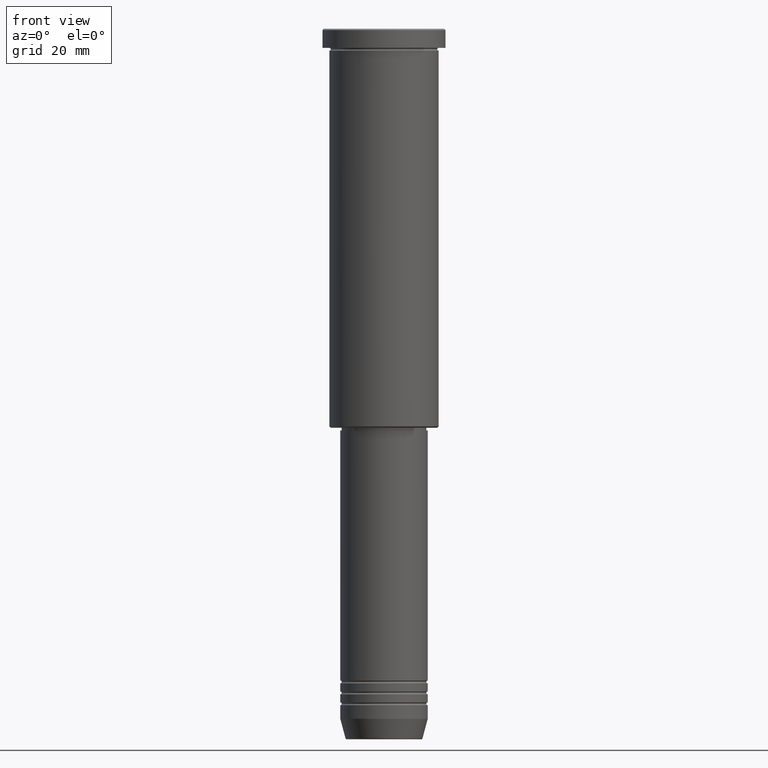
[diagram: clean part render]
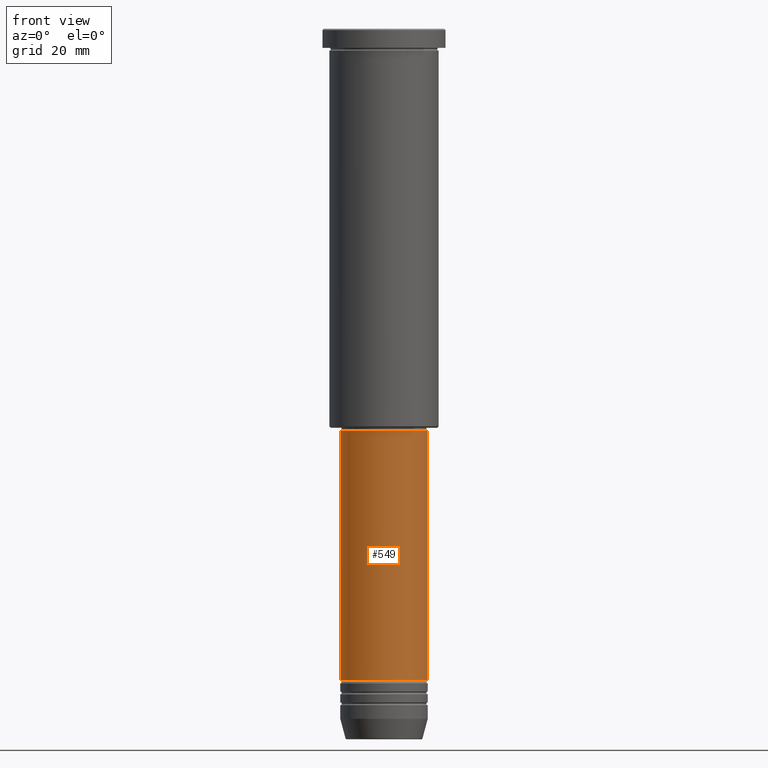
[diagram: same view with one face highlighted and labeled with its STEP entity id]
A machine part, front view. The second image highlights one B-rep face of the part: STEP entity #549.
In plain terms, the highlighted cylindrical surface (partial cylindrical patch) has radius 16 mm, axis along (-0, -0, 1).
Its self-contained STEP definition (entity closure, byte-faithful):
#3 = CARTESIAN_POINT ( 'NONE',  ( 16.00000000000000000, 0.000000000000000000, -238.5000000000000000 ) ) ;
#24 = DIRECTION ( 'NONE',  ( -0.000000000000000000, -0.000000000000000000, 1.000000000000000000 ) ) ;
#31 = ORIENTED_EDGE ( 'NONE', *, *, #1047, .T. ) ;
#40 = CARTESIAN_POINT ( 'NONE',  ( 0.000000000000000000, 0.000000000000000000, 0.000000000000000000 ) ) ;
#50 = VERTEX_POINT ( 'NONE', #283 ) ;
#55 = VECTOR ( 'NONE', #989, 1000.000000000000000 ) ;
#57 = ORIENTED_EDGE ( 'NONE', *, *, #893, .F. ) ;
#79 = EDGE_CURVE ( 'NONE', #968, #609, #640, .T. ) ;
#121 = DIRECTION ( 'NONE',  ( 1.000000000000000000, 0.000000000000000000, 0.000000000000000000 ) ) ;
#129 = DIRECTION ( 'NONE',  ( 1.000000000000000000, 0.000000000000000000, 0.000000000000000000 ) ) ;
#182 = EDGE_CURVE ( 'NONE', #872, #609, #236, .T. ) ;
#193 = CARTESIAN_POINT ( 'NONE',  ( 0.000000000000000000, 0.000000000000000000, -147.0000000000000000 ) ) ;
#220 = CARTESIAN_POINT ( 'NONE',  ( 0.000000000000000000, 0.000000000000000000, -238.5000000000000000 ) ) ;
#236 = LINE ( 'NONE', #403, #831 ) ;
#237 = EDGE_LOOP ( 'NONE', ( #57, #31, #485, #526 ) ) ;
#258 = CARTESIAN_POINT ( 'NONE',  ( -16.00000000000000000, 1.959434878635765131E-15, -147.0000000000000000 ) ) ;
#283 = CARTESIAN_POINT ( 'NONE',  ( -16.00000000000000000, 1.959434878635765131E-15, -238.5000000000000000 ) ) ;
#308 = CIRCLE ( 'NONE', #544, 16.00000000000000000 ) ;
#403 = CARTESIAN_POINT ( 'NONE',  ( 16.00000000000000000, 0.000000000000000000, 0.000000000000000000 ) ) ;
#485 = ORIENTED_EDGE ( 'NONE', *, *, #182, .T. ) ;
#526 = ORIENTED_EDGE ( 'NONE', *, *, #79, .F. ) ;
#544 = AXIS2_PLACEMENT_3D ( 'NONE', #220, #829, #129 ) ;
#549 = ADVANCED_FACE ( 'NONE', ( #855 ), #588, .T. ) ;
#588 = CYLINDRICAL_SURFACE ( 'NONE', #1124, 16.00000000000000000 ) ;
#609 = VERTEX_POINT ( 'NONE', #1132 ) ;
#640 = CIRCLE ( 'NONE', #950, 16.00000000000000000 ) ;
#804 = LINE ( 'NONE', #1087, #55 ) ;
#827 = DIRECTION ( 'NONE',  ( 1.000000000000000000, 0.000000000000000000, 0.000000000000000000 ) ) ;
#829 = DIRECTION ( 'NONE',  ( -0.000000000000000000, -0.000000000000000000, 1.000000000000000000 ) ) ;
#831 = VECTOR ( 'NONE', #930, 1000.000000000000000 ) ;
#855 = FACE_OUTER_BOUND ( 'NONE', #237, .T. ) ;
#872 = VERTEX_POINT ( 'NONE', #3 ) ;
#893 = EDGE_CURVE ( 'NONE', #50, #968, #804, .T. ) ;
#914 = DIRECTION ( 'NONE',  ( -0.000000000000000000, -0.000000000000000000, 1.000000000000000000 ) ) ;
#930 = DIRECTION ( 'NONE',  ( -0.000000000000000000, -0.000000000000000000, 1.000000000000000000 ) ) ;
#950 = AXIS2_PLACEMENT_3D ( 'NONE', #193, #914, #827 ) ;
#968 = VERTEX_POINT ( 'NONE', #258 ) ;
#989 = DIRECTION ( 'NONE',  ( -0.000000000000000000, -0.000000000000000000, 1.000000000000000000 ) ) ;
#1047 = EDGE_CURVE ( 'NONE', #50, #872, #308, .T. ) ;
#1087 = CARTESIAN_POINT ( 'NONE',  ( -16.00000000000000000, 1.959434878635765131E-15, 0.000000000000000000 ) ) ;
#1124 = AXIS2_PLACEMENT_3D ( 'NONE', #40, #24, #121 ) ;
#1132 = CARTESIAN_POINT ( 'NONE',  ( 16.00000000000000000, 0.000000000000000000, -147.0000000000000000 ) ) ;